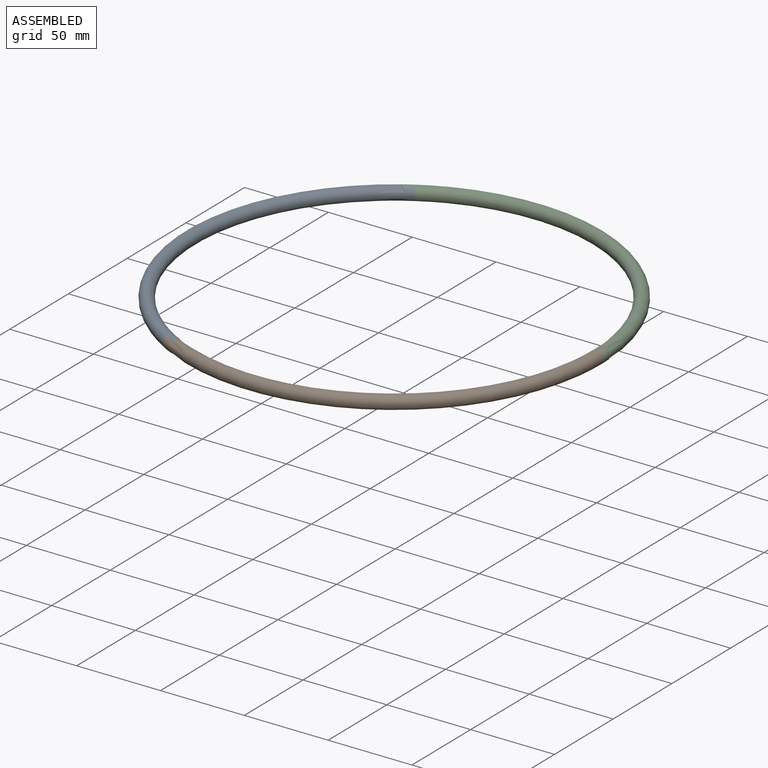
[diagram: assembled view]
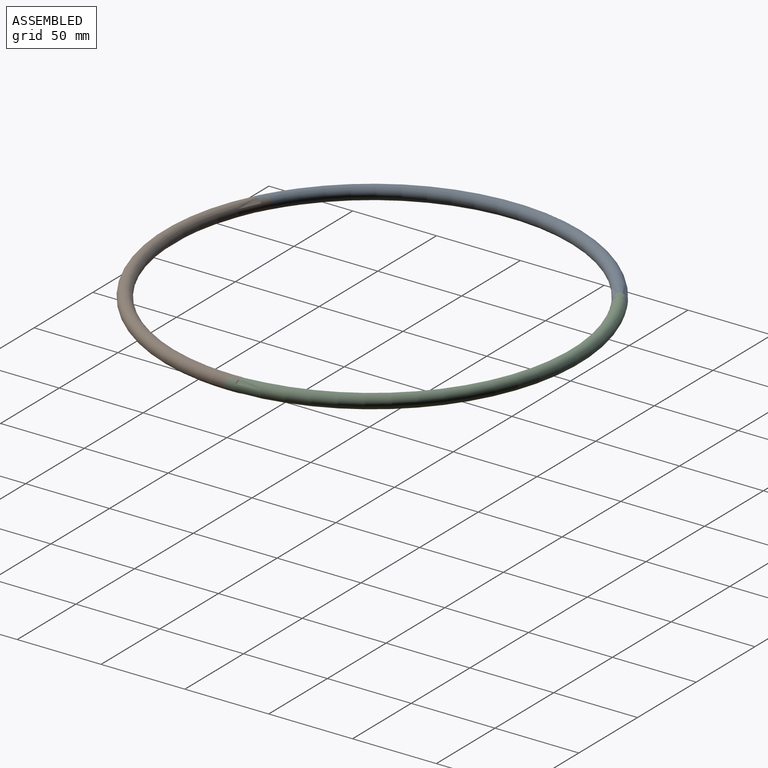
[diagram: assembled view, second angle]
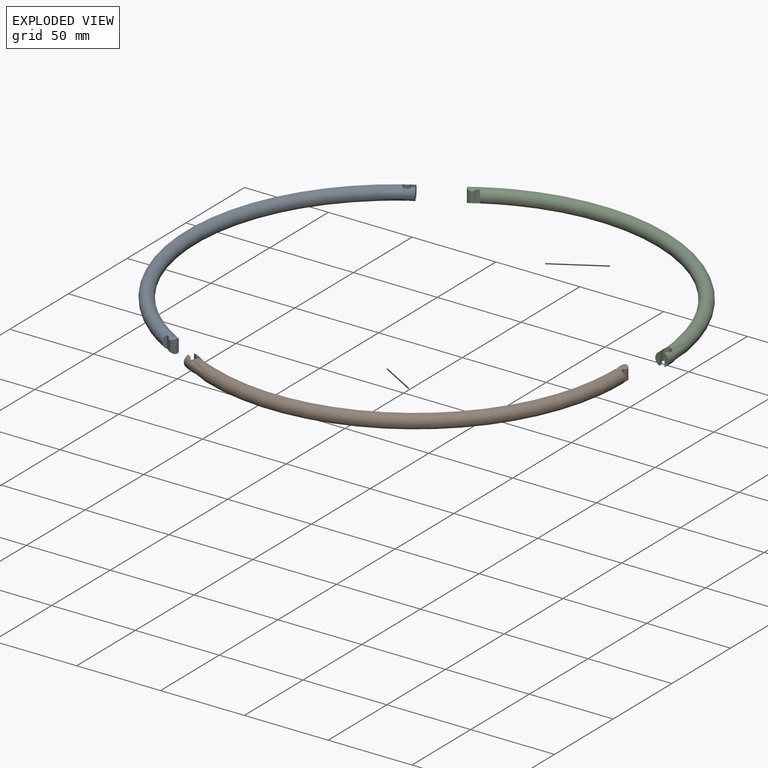
[diagram: exploded view]
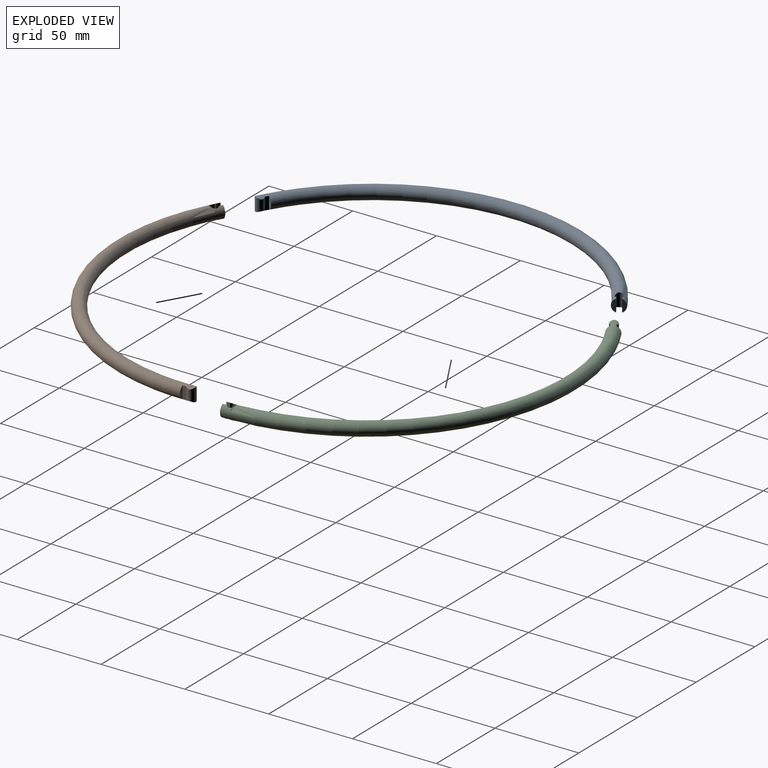
[diagram: exploded view, second angle]
ASSEMBLY  parts=3 mates=2
PART A: 12 faces, bbox 202.9x142.8x8 mm
  f0: torus R=121mm, axis (0,0,1), area 6366.1mm2, adj f1,f2,f3,f4,f5,f6,f7,f8
  f1: torus R=121mm, axis (0,0,1), area 3.2mm2, adj f0,f9
  f2: plane 7.42x2.17mm, normal (-0.87,0.5,0), area 13.4mm2, adj f0,f6
  f3: plane 7.42x2.17mm, normal (-0.87,0.5,0), area 13.4mm2, adj f0,f5
  f4: cylinder r=2.5mm len=8mm, axis (0,0,1), area 87.2mm2, adj f0,f5,f6
  f5: cylinder r=122.5mm len=7.42mm, axis (0,0,1), area 16.8mm2, adj f0,f3,f4
  f6: cylinder r=119.5mm len=7.42mm, axis (0,0,1), area 16.2mm2, adj f0,f2,f4
  f7: plane 7.42x2.5mm, normal (0,1,0), area 13.4mm2, adj f0,f8
  f8: cylinder r=119.5mm len=7.42mm, axis (0,0,1), area 16.2mm2, adj f0,f7,f9
  f9: cylinder r=2.5mm len=8mm, axis (0,0,1), area 87.2mm2, adj f0,f1,f8,f10
  f10: cylinder r=122.5mm len=7.42mm, axis (0,0,1), area 16.8mm2, adj f0,f9,f11
  f11: plane 7.42x2.5mm, normal (0,1,0), area 13.4mm2, adj f0,f10
PART B: same geometry as A
PART C: same geometry as A
PLACE A rot(axis=(0,0,-1),120deg) t=(-34.14,47.9,-31.35)mm
PLACE B t=(-34.14,47.9,-31.35)mm
PLACE C rot(axis=(0,0,1),120deg) t=(-34.14,47.9,-31.35)mm
MATE planar A.f7 <-> B.f2  axis (0.87,-0.5,0) through (-93.38,-54.7,-31.35)mm
MATE planar C.f7 <-> A.f2  axis (-0.87,-0.5,0) through (-93.38,150.5,-31.35)mm
